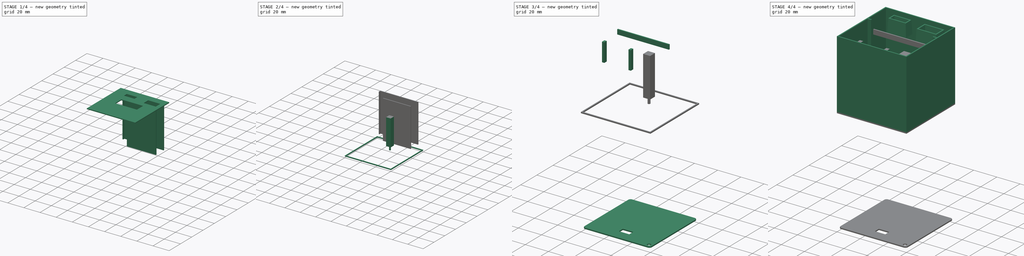
[diagram: build sequence overview — one tinted view per stage of 4, left to right]
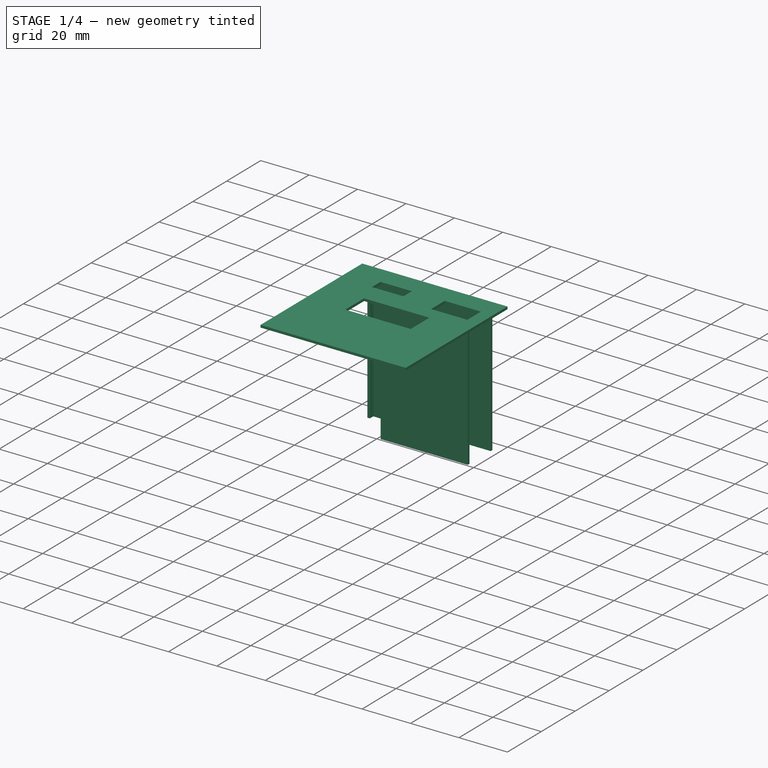
[diagram: stage 1 of 4 — iso view after this stage's code; geometry added in this stage tinted green]
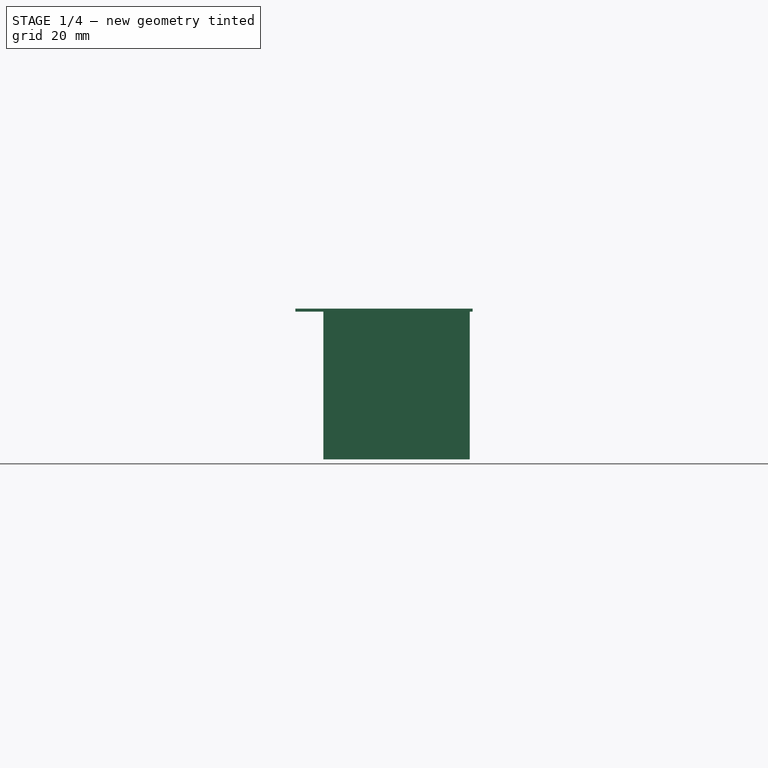
[diagram: stage 1 of 4 — front view after this stage's code; geometry added in this stage tinted green]
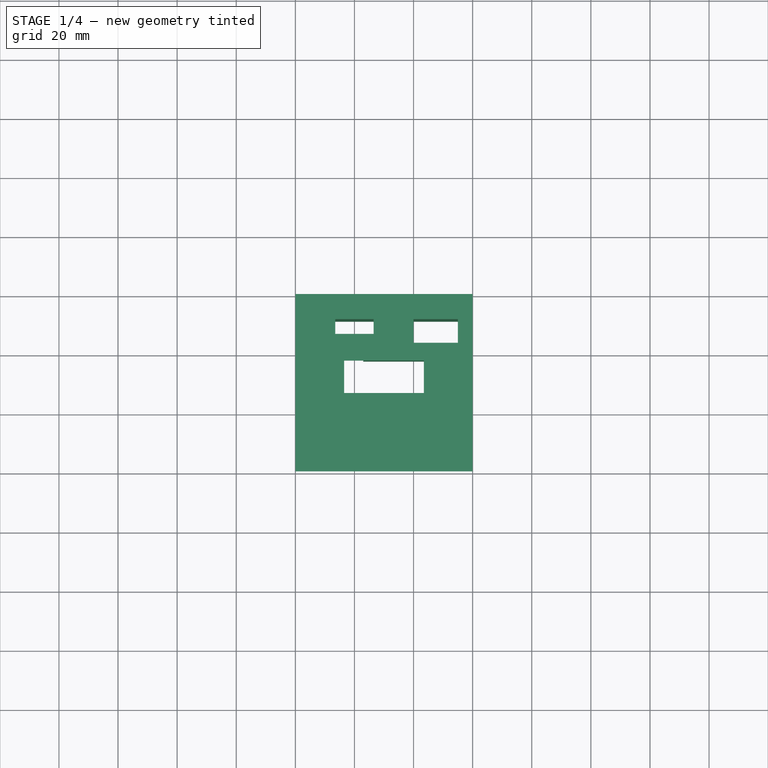
[diagram: stage 1 of 4 — top view after this stage's code; geometry added in this stage tinted green]
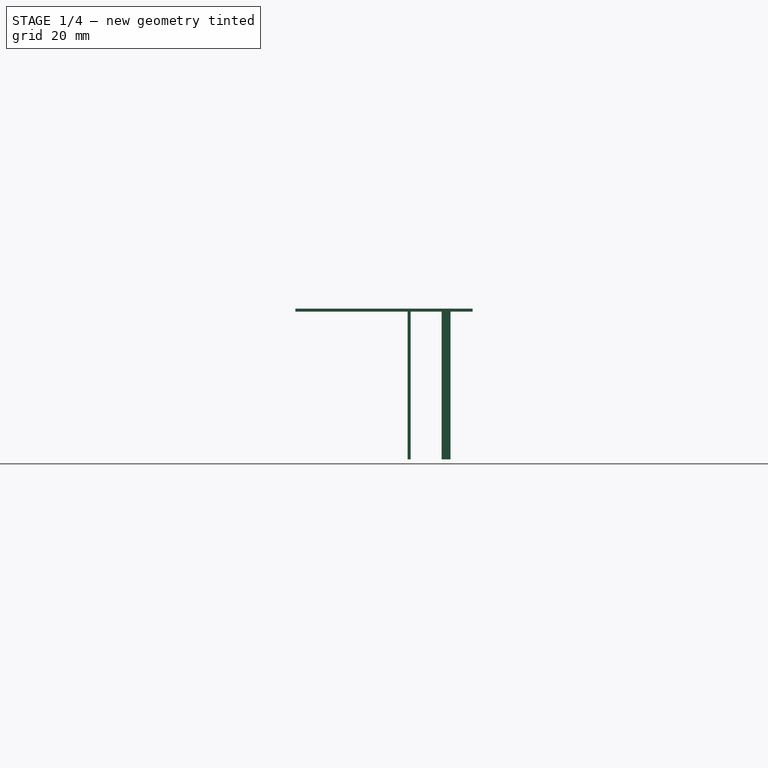
[diagram: stage 1 of 4 — right view after this stage's code; geometry added in this stage tinted green]
FCSTD DOCUMENT  (FreeCAD 0.21R33668 +26 (Git))
Label: pms7003-v3
License: All rights reserved
LicenseURL: http://en.wikipedia.org/wiki/All_rights_reserved
objects: Sketcher::SketchObject×10, Part::Extrusion×10
note: 20 computed .brp shape members not serialized (recipe doc carries the construction recipe); baked Part::Feature solids carry a one-line shape summary decoded from their .brp

FEATURE [Sketcher::SketchObject] Sketch
  FullyConstrained = true
  sketch-geometry (32):
    g0: LineSegment StartX=0 StartY=0 StartZ=0 EndX=60 EndY=0 EndZ=0
    g1: LineSegment StartX=60 StartY=0 StartZ=0 EndX=60 EndY=60 EndZ=0
    g2: LineSegment StartX=60 StartY=60 StartZ=0 EndX=0 EndY=60 EndZ=0
    g3: LineSegment StartX=0 StartY=60 StartZ=0 EndX=0 EndY=0 EndZ=0
    g4: LineSegment StartX=16.5 StartY=37.5 StartZ=0 EndX=43.5 EndY=37.5 EndZ=0
    g5: LineSegment StartX=43.5 StartY=37.5 StartZ=0 EndX=43.5 EndY=26.5 EndZ=0
    g6: LineSegment StartX=43.5 StartY=26.5 StartZ=0 EndX=16.5 EndY=26.5 EndZ=0
    g7: LineSegment StartX=16.5 StartY=26.5 StartZ=0 EndX=16.5 EndY=37.5 EndZ=0
    g8: LineSegment StartX=40 StartY=51.5 StartZ=0 EndX=55 EndY=51.5 EndZ=0
    g9: LineSegment StartX=55 StartY=51.5 StartZ=0 EndX=55 EndY=43.5 EndZ=0
    g10: LineSegment StartX=55 StartY=43.5 StartZ=0 EndX=40 EndY=43.5 EndZ=0
    g11: LineSegment StartX=40 StartY=43.5 StartZ=0 EndX=40 EndY=51.5 EndZ=0
    g12: LineSegment StartX=13.5 StartY=51.5 StartZ=0 EndX=26.5 EndY=51.5 EndZ=0
    g13: LineSegment StartX=26.5 StartY=51.5 StartZ=0 EndX=26.5 EndY=46.5 EndZ=0
    g14: LineSegment StartX=26.5 StartY=46.5 StartZ=0 EndX=13.5 EndY=46.5 EndZ=0
    g15: LineSegment StartX=13.5 StartY=46.5 StartZ=0 EndX=13.5 EndY=51.5 EndZ=0
    g16: LineSegment StartX=10.5 StartY=51.5 StartZ=0 EndX=58.5 EndY=51.5 EndZ=0
    g17: LineSegment StartX=58.5 StartY=51.5 StartZ=0 EndX=58.5 EndY=39.5 EndZ=0
    g18: LineSegment StartX=58.5 StartY=39.5 StartZ=0 EndX=10.5 EndY=39.5 EndZ=0
    g19: LineSegment StartX=10.5 StartY=39.5 StartZ=0 EndX=10.5 EndY=51.5 EndZ=0
    g20: LineSegment StartX=10.5 StartY=39.5 StartZ=0 EndX=1.5 EndY=39.5 EndZ=0
    g21: LineSegment StartX=1.5 StartY=39.5 StartZ=0 EndX=1.5 EndY=37.9 EndZ=0
    g22: LineSegment StartX=1.5 StartY=37.9 StartZ=0 EndX=10.5 EndY=37.9 EndZ=0
    g23: LineSegment StartX=10.5 StartY=37.9 StartZ=0 EndX=10.5 EndY=39.5 EndZ=0
    g24: LineSegment StartX=10.5 StartY=39.5 StartZ=0 EndX=19.5 EndY=39.5 EndZ=0
    g25: LineSegment StartX=19.5 StartY=39.5 StartZ=0 EndX=19.5 EndY=37.9 EndZ=0
    g26: LineSegment StartX=19.5 StartY=37.9 StartZ=0 EndX=10.5 EndY=37.9 EndZ=0
    g27: LineSegment StartX=10.5 StartY=37.9 StartZ=0 EndX=10.5 EndY=39.5 EndZ=0
    g28: LineSegment StartX=10.5 StartY=38 StartZ=0 EndX=50.5 EndY=38 EndZ=0
    g29: LineSegment StartX=50.5 StartY=38 StartZ=0 EndX=50.5 EndY=26 EndZ=0
    g30: LineSegment StartX=50.5 StartY=26 StartZ=0 EndX=10.5 EndY=26 EndZ=0
    g31: LineSegment StartX=10.5 StartY=26 StartZ=0 EndX=10.5 EndY=38 EndZ=0
  constraints (93):
    c: Coincident(g0,g1)
    c: Coincident(g1,g2)
    c: Coincident(g2,g3)
    c: Coincident(g3,g0)
    c: Horizontal(g0)
    c: Horizontal(g2)
    c: Vertical(g1)
    c: Vertical(g3)
    c: Coincident(g0,g-1)
    c: DistanceX(g0,g0) = 60
    c: DistanceY(g3,g3) = 60
    c: Coincident(g4,g5)
    c: Coincident(g5,g6)
    c: Coincident(g6,g7)
    c: Coincident(g7,g4)
    c: Horizontal(g4)
    c: Horizontal(g6)
    c: Vertical(g5)
    c: Vertical(g7)
    c: DistanceY(g7,g7) = 11
    c: DistanceX(g4,g4) = 27
    c: Coincident(g8,g9)
    c: Coincident(g9,g10)
    c: Coincident(g10,g11)
    c: Coincident(g11,g8)
    c: Horizontal(g8)
    c: Horizontal(g10)
    c: Vertical(g9)
    c: Vertical(g11)
    c: DistanceY(g11,g11) = 8
    c: DistanceX(g8,g8) = 15
    c: Coincident(g12,g13)
    c: Coincident(g13,g14)
    c: Coincident(g14,g15)
    c: Coincident(g15,g12)
    c: Horizontal(g12)
    c: Horizontal(g14)
    c: Vertical(g13)
    c: Vertical(g15)
    c: DistanceX(g12,g12) = 13
    c: Horizontal(g12,g8)
    c: Coincident(g16,g17)
    c: Coincident(g17,g18)
    c: Coincident(g18,g19)
    c: Coincident(g19,g16)
    c: Horizontal(g16)
    c: Horizontal(g18)
    c: Vertical(g17)
    c: Vertical(g19)
    c: DistanceX(g16,g16) = 48
    c: DistanceY(g17,g17) = 12
    c: DistanceX(g8,g16) = 3.5
    c: Coincident(g20,g21)
    c: Coincident(g21,g22)
    c: Coincident(g22,g23)
    c: Coincident(g23,g20)
    c: Horizontal(g20)
    c: Horizontal(g22)
    c: Vertical(g21)
    c: Vertical(g23)
    c: Coincident(g20,g18)
    c: DistanceX(g20,g20) = 9
    c: DistanceY(g21,g21) = 1.6
    c: Coincident(g24,g25)
    c: Coincident(g25,g26)
    c: Coincident(g26,g27)
    c: Coincident(g27,g24)
    c: Horizontal(g24)
    c: Horizontal(g26)
    c: Vertical(g25)
    c: Vertical(g27)
    c: Coincident(g24,g18)
    c: DistanceX(g26,g26) = 9
    c: DistanceY(g25,g25) = 1.6
    c: DistanceY(g8,g16) = 0
    c: Coincident(g28,g29)
    c: Coincident(g29,g30)
    c: Coincident(g30,g31)
    c: Coincident(g31,g28)
    c: Horizontal(g28)
    c: Horizontal(g30)
    c: Vertical(g29)
    c: Vertical(g31)
    c: DistanceX(g28,g28) = 40
    c: DistanceY(g31,g31) = 12
    c: DistanceY(g29,g5) = 0.5
    c: DistanceX(g16,g1) = 1.5
    c: DistanceY(g12,g2) = 8.5
    c: DistanceX(g2,g14) = 13.5
    c: DistanceY(g13,g13) = 5
    c: DistanceY(g28,g2) = 22
    c: DistanceX(g30,g6) = 6
    c: DistanceX(g0,g6) = 16.5
FEATURE [Part::Extrusion] Extrude
  Base = -> Sketch
  Dir = (0,0,1)
  DirMode = 2
  FaceMakerClass = Part::FaceMakerBullseye
  LengthFwd = 1
  LengthRev = 0
  Solid = true
  Symmetric = false
FEATURE [Sketcher::SketchObject] Sketch011
  FullyConstrained = true
  sketch-geometry (10):
    g0: LineSegment StartX=59 StartY=52.5 StartZ=0 EndX=59 EndY=51.5 EndZ=0
    g1: LineSegment StartX=59 StartY=51.5 StartZ=0 EndX=10.5 EndY=51.5 EndZ=0
    g2: LineSegment StartX=10.5 StartY=51.5 StartZ=0 EndX=10.5 EndY=49.5 EndZ=0
    g3: LineSegment StartX=10.5 StartY=49.5 StartZ=0 EndX=9.5 EndY=49.5 EndZ=0
    g4: LineSegment StartX=9.5 StartY=49.5 StartZ=0 EndX=9.5 EndY=52.5 EndZ=0
    g5: LineSegment StartX=9.5 StartY=52.5 StartZ=0 EndX=59 EndY=52.5 EndZ=0
    g6: LineSegment StartX=59 StartY=39 StartZ=0 EndX=23 EndY=39 EndZ=0
    g7: LineSegment StartX=23 StartY=39 StartZ=0 EndX=23 EndY=38 EndZ=0
    g8: LineSegment StartX=23 StartY=38 StartZ=0 EndX=59 EndY=38 EndZ=0
    g9: LineSegment StartX=59 StartY=38 StartZ=0 EndX=59 EndY=39 EndZ=0
  constraints (30):
    c: Vertical(g0)
    c: Coincident(g0,g1)
    c: Horizontal(g1)
    c: Coincident(g1,g2)
    c: Vertical(g2)
    c: Coincident(g2,g3)
    c: Coincident(g3,g4)
    c: Vertical(g4)
    c: Coincident(g4,g5)
    c: Coincident(g5,g0)
    c: Horizontal(g5)
    c: DistanceY(g0,g0) = 1
    c: DistanceY(g3,g4) = 3
    c: Horizontal(g3)
    c: DistanceX(g3,g2) = 1
    c: DistanceX(g5,g5) = 49.5
    c: DistanceX(g-1,g0) = 59
    c: DistanceY(g-1,g0) = 51.5
    c: Coincident(g6,g7)
    c: Coincident(g7,g8)
    c: Coincident(g8,g9)
    c: Coincident(g9,g6)
    c: Horizontal(g6)
    c: Horizontal(g8)
    c: Vertical(g7)
    c: Vertical(g9)
    c: DistanceX(g6,g6) = 36
    c: DistanceY(g7,g7) = 1
    c: DistanceX(g-1,g6) = 59
    c: DistanceY(g-1,g6) = 39
FEATURE [Part::Extrusion] Extrude011
  Base = -> Sketch011
  Dir = (0,0,1)
  DirMode = 2
  FaceMakerClass = Part::FaceMakerBullseye
  LengthFwd = 50
  LengthRev = 0
  Reversed = true
  Solid = true
  Symmetric = false
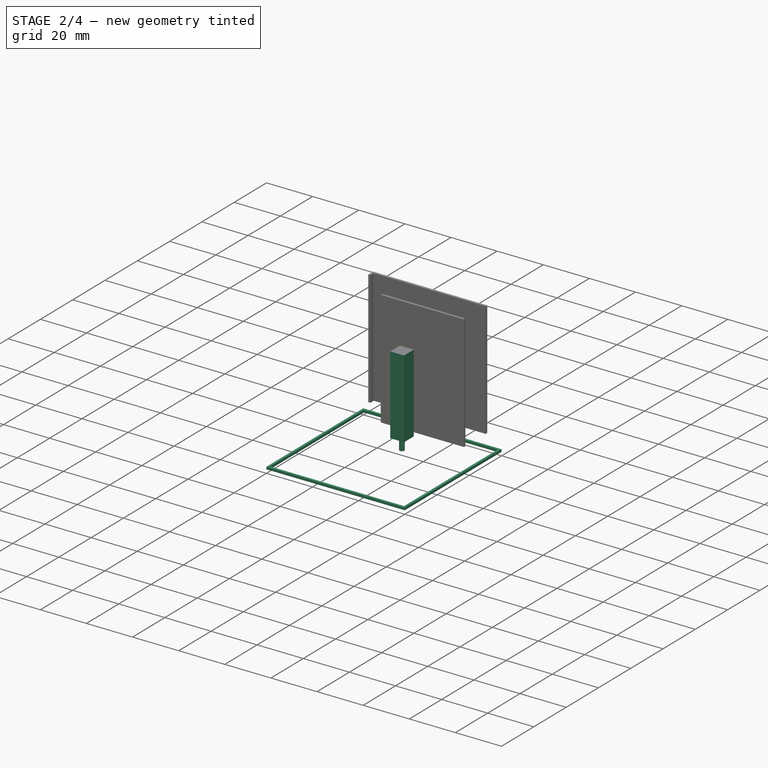
[diagram: stage 2 of 4 — iso view after this stage's code; geometry added in this stage tinted green]
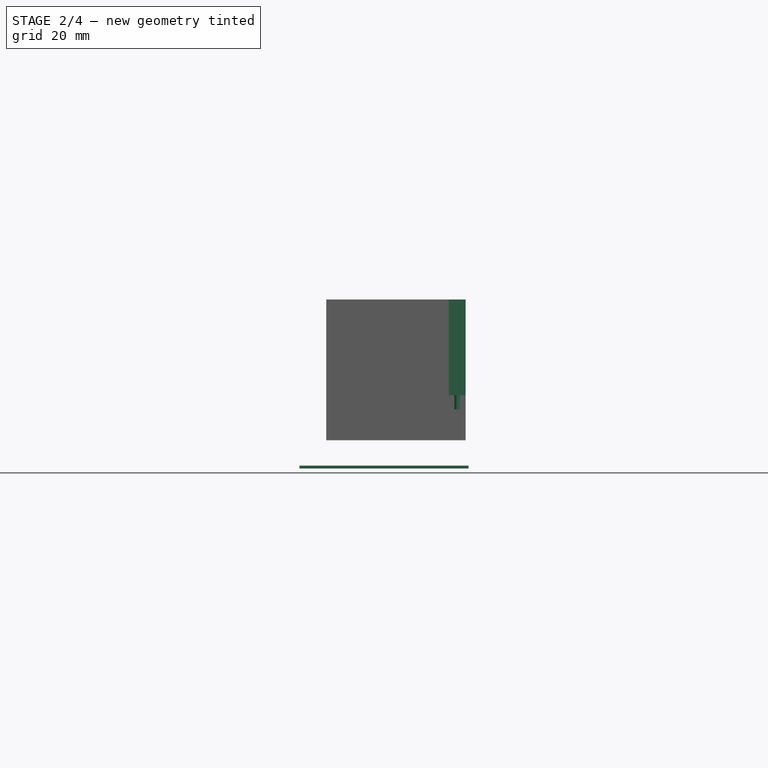
[diagram: stage 2 of 4 — front view after this stage's code; geometry added in this stage tinted green]
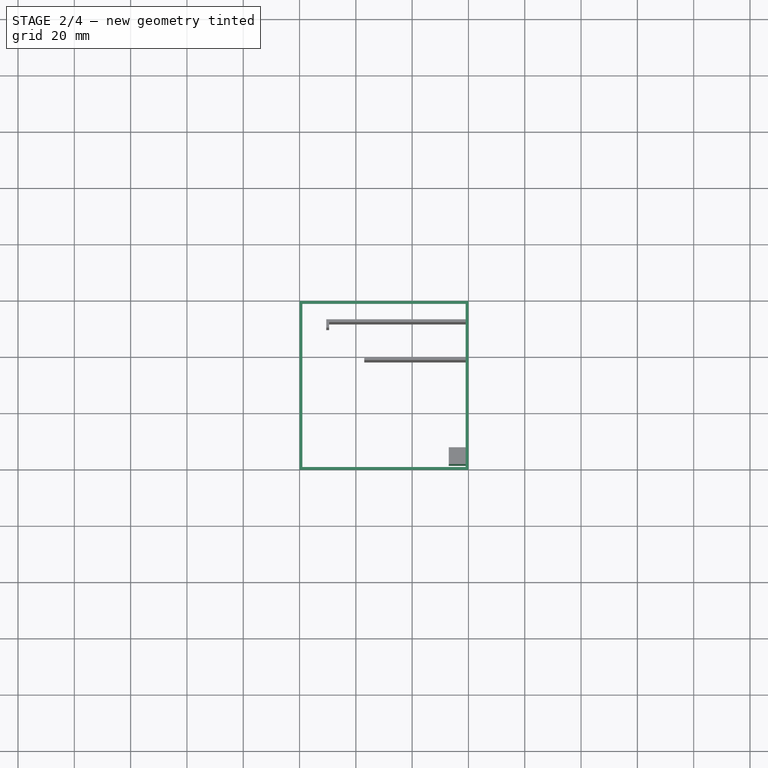
[diagram: stage 2 of 4 — top view after this stage's code; geometry added in this stage tinted green]
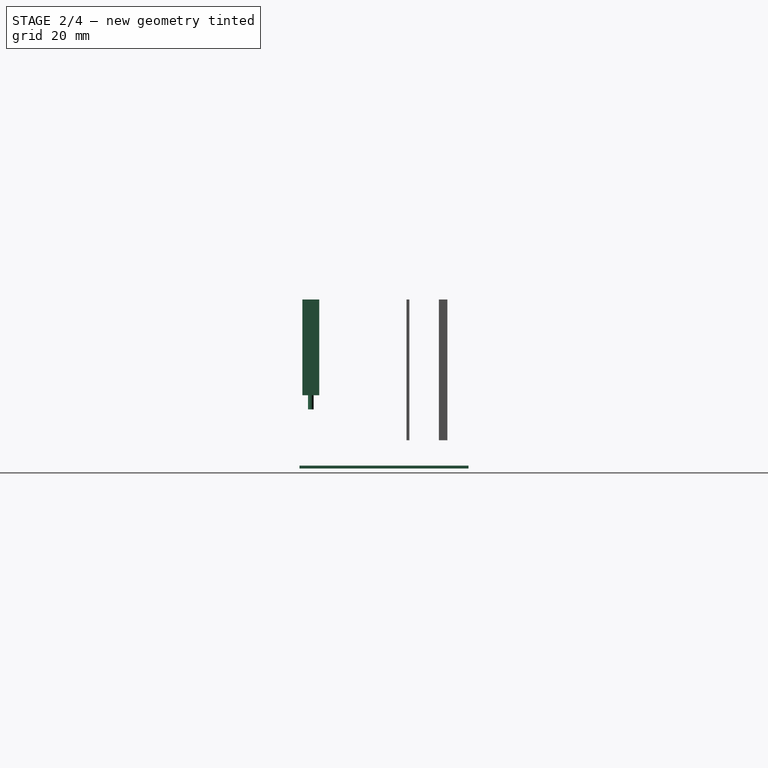
[diagram: stage 2 of 4 — right view after this stage's code; geometry added in this stage tinted green]
FEATURE [Sketcher::SketchObject] Sketch007
  FullyConstrained = true
  sketch-geometry (4):
    g0: LineSegment StartX=53 StartY=7 StartZ=0 EndX=59 EndY=7 EndZ=0
    g1: LineSegment StartX=59 StartY=7 StartZ=0 EndX=59 EndY=1 EndZ=0
    g2: LineSegment StartX=59 StartY=1 StartZ=0 EndX=53 EndY=1 EndZ=0
    g3: LineSegment StartX=53 StartY=1 StartZ=0 EndX=53 EndY=7 EndZ=0
  constraints (12):
    c: Coincident(g0,g1)
    c: Coincident(g1,g2)
    c: Coincident(g2,g3)
    c: Coincident(g3,g0)
    c: Horizontal(g0)
    c: Horizontal(g2)
    c: Vertical(g1)
    c: Vertical(g3)
    c: DistanceY(g1,g1) = 6
    c: DistanceX(g0,g0) = 6
    c: DistanceY(g-1,g2) = 1
    c: DistanceX(g-1,g2) = 53
FEATURE [Part::Extrusion] Extrude007  label="nut base"
  Base = -> Sketch007
  Dir = (0,0,1)
  DirMode = 2
  FaceMakerClass = Part::FaceMakerBullseye
  LengthFwd = 34
  LengthRev = 0
  Reversed = true
  Solid = true
  Symmetric = false
FEATURE [Sketcher::SketchObject] Sketch009
  FullyConstrained = true
  sketch-geometry (1):
    g0: Circle CenterX=56 CenterY=4 CenterZ=0 NormalX=0 NormalY=0 NormalZ=1 AngleXU=0 Radius=1
  constraints (3):
    c: Radius(g0) = 1
    c: DistanceY(g-1,g0) = 4
    c: DistanceX(g-1,g0) = 56
FEATURE [Part::Extrusion] Extrude009  label="nut base locator"
  Base = -> Sketch009
  Dir = (0,0,1)
  DirMode = 2
  FaceMakerClass = Part::FaceMakerBullseye
  LengthFwd = 5
  LengthRev = 0
  Placement = pos=(0,0,-34) rot=(0,0,1;0rad)
  Reversed = true
  Solid = true
  Symmetric = false
FEATURE [Sketcher::SketchObject] Sketch010
  ExternalGeometry = -> [Extrude]
  FullyConstrained = true
  sketch-geometry (8):
    g0: LineSegment StartX=60 StartY=60 StartZ=0 EndX=0 EndY=60 EndZ=0
    g1: LineSegment StartX=0 StartY=60 StartZ=0 EndX=0 EndY=0 EndZ=0
    g2: LineSegment StartX=0 StartY=0 StartZ=0 EndX=60 EndY=0 EndZ=0
    g3: LineSegment StartX=60 StartY=0 StartZ=0 EndX=60 EndY=60 EndZ=0
    g4: LineSegment StartX=1 StartY=59 StartZ=0 EndX=59 EndY=59 EndZ=0
    g5: LineSegment StartX=59 StartY=59 StartZ=0 EndX=59 EndY=1.01 EndZ=0
    g6: LineSegment StartX=59 StartY=1.01 StartZ=0 EndX=1 EndY=1.01 EndZ=0
    g7: LineSegment StartX=1 StartY=1.01 StartZ=0 EndX=1 EndY=59 EndZ=0
  constraints (22):
    c: Coincident(g0,g1)
    c: Coincident(g1,g2)
    c: Coincident(g2,g3)
    c: Coincident(g3,g0)
    c: Horizontal(g0)
    c: Horizontal(g2)
    c: Vertical(g1)
    c: Vertical(g3)
    c: Coincident(g0,g-5)
    c: Coincident(g1,g-6)
    c: Coincident(g4,g5)
    c: Coincident(g5,g6)
    c: Coincident(g6,g7)
    c: Coincident(g7,g4)
    c: Horizontal(g4)
    c: Horizontal(g6)
    c: Vertical(g5)
    c: Vertical(g7)
    c: DistanceX(g0,g4) = 1
    c: DistanceX(g4,g0) = 1
    c: DistanceY(g4,g0) = 1
    c: DistanceY(g1,g6) = 1.01
FEATURE [Part::Extrusion] Extrude010
  Base = -> Sketch010
  Dir = (0,0,1)
  DirMode = 2
  FaceMakerClass = Part::FaceMakerBullseye
  LengthFwd = 1
  LengthRev = 0
  Placement = pos=(0,0,-60) rot=(0,0,1;0rad)
  Solid = true
  Symmetric = false
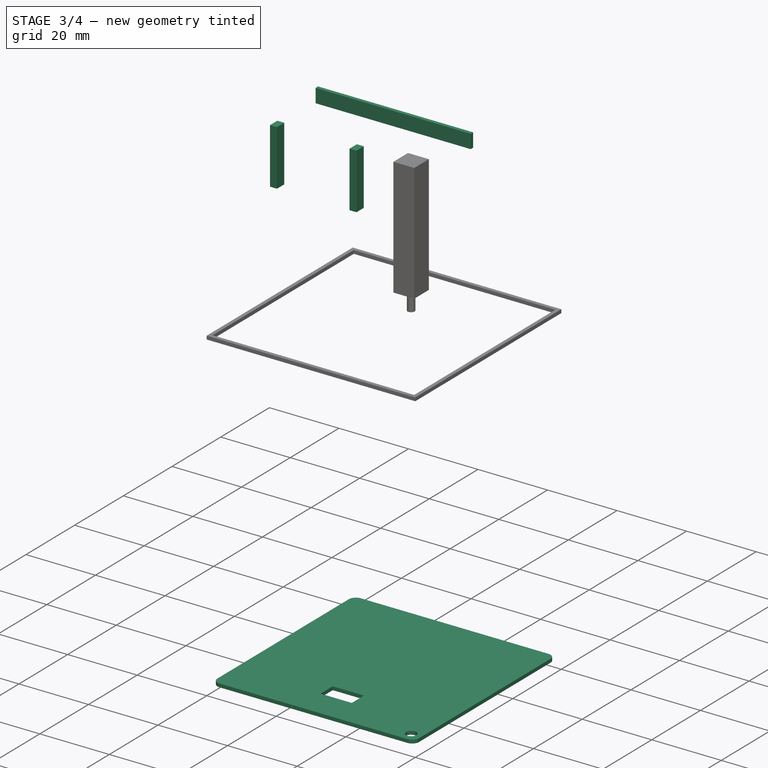
[diagram: stage 3 of 4 — iso view after this stage's code; geometry added in this stage tinted green]
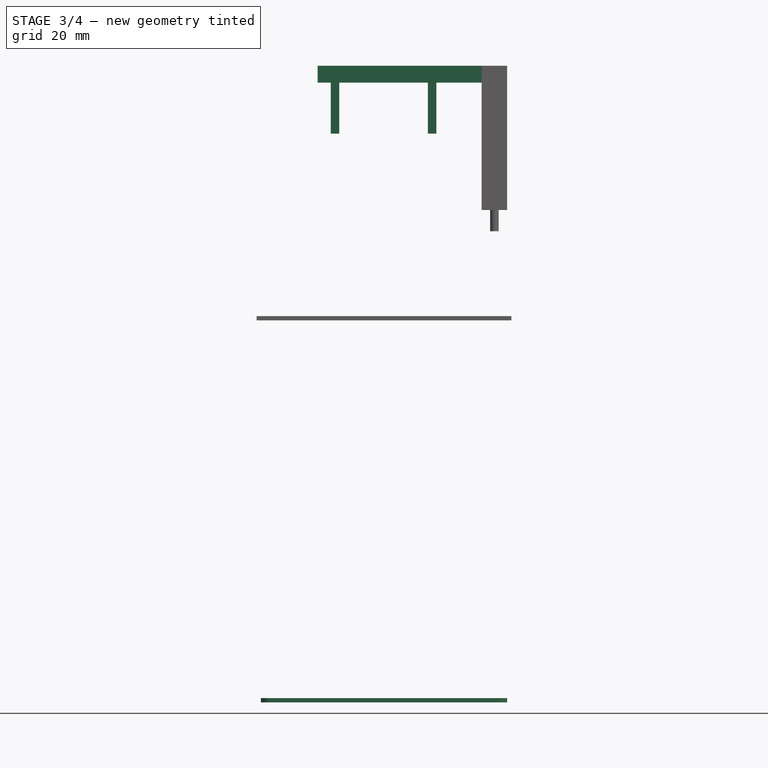
[diagram: stage 3 of 4 — front view after this stage's code; geometry added in this stage tinted green]
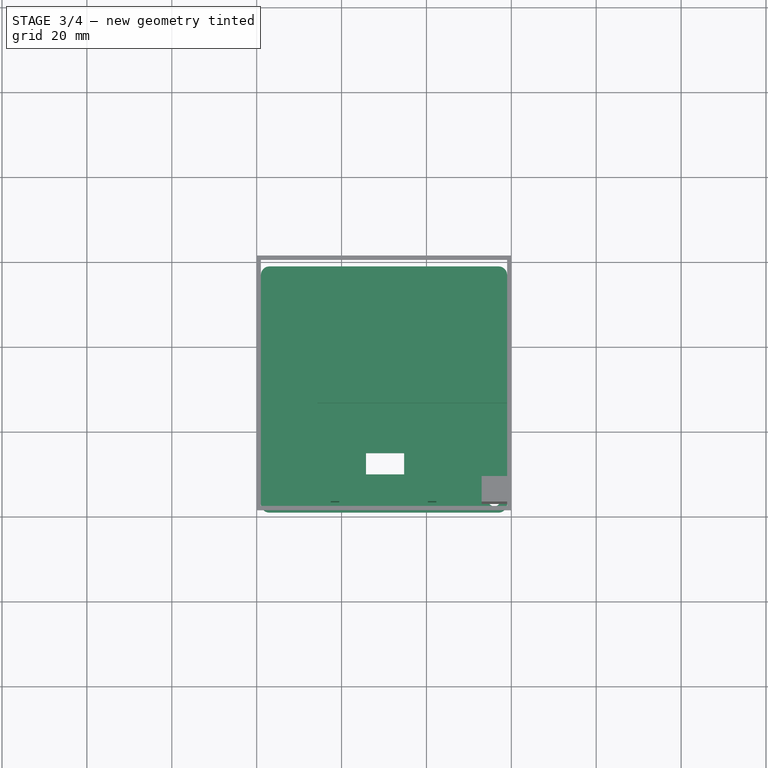
[diagram: stage 3 of 4 — top view after this stage's code; geometry added in this stage tinted green]
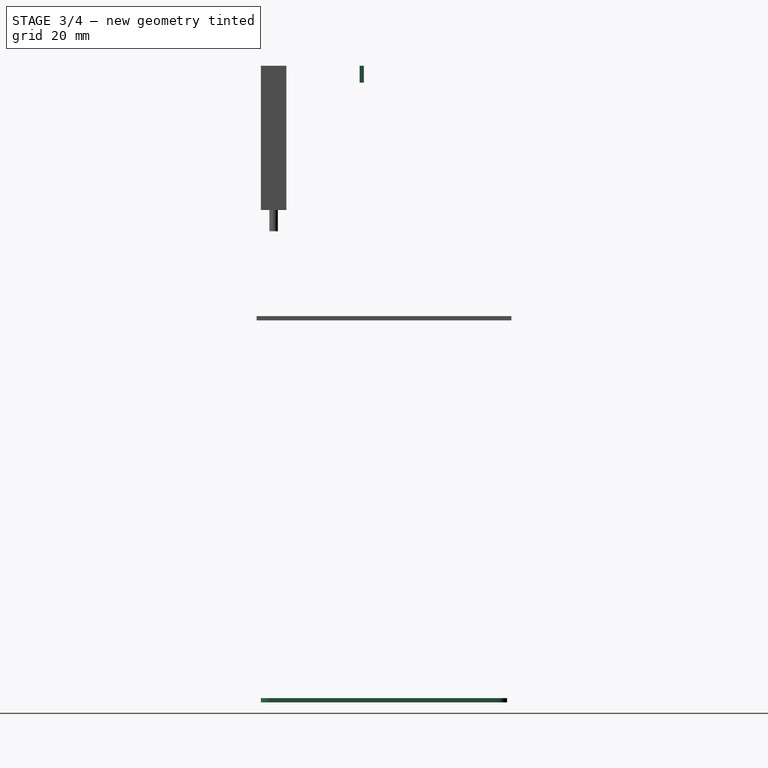
[diagram: stage 3 of 4 — right view after this stage's code; geometry added in this stage tinted green]
FEATURE [Sketcher::SketchObject] Sketch004
  FullyConstrained = false
  sketch-geometry (8):
    g0: LineSegment StartX=17.4672 StartY=4.07613 StartZ=0 EndX=19.4672 EndY=4.07613 EndZ=0
    g1: LineSegment StartX=19.4672 StartY=4.07613 StartZ=0 EndX=19.4672 EndY=1.07613 EndZ=0
    g2: LineSegment StartX=19.4672 StartY=1.07613 StartZ=0 EndX=17.4672 EndY=1.07613 EndZ=0
    g3: LineSegment StartX=17.4672 StartY=1.07613 StartZ=0 EndX=17.4672 EndY=4.07613 EndZ=0
    g4: LineSegment StartX=40.3363 StartY=4.07613 StartZ=0 EndX=42.3363 EndY=4.07613 EndZ=0
    g5: LineSegment StartX=42.3363 StartY=4.07613 StartZ=0 EndX=42.3363 EndY=1.07613 EndZ=0
    g6: LineSegment StartX=42.3363 StartY=1.07613 StartZ=0 EndX=40.3363 EndY=1.07613 EndZ=0
    g7: LineSegment StartX=40.3363 StartY=1.07613 StartZ=0 EndX=40.3363 EndY=4.07613 EndZ=0
  constraints (21):
    c: Coincident(g0,g1)
    c: Coincident(g1,g2)
    c: Coincident(g2,g3)
    c: Coincident(g3,g0)
    c: Horizontal(g0)
    c: Horizontal(g2)
    c: Vertical(g1)
    c: Vertical(g3)
    c: DistanceY(g3,g3) = 3
    c: DistanceX(g0,g0) = 2
    c: Coincident(g4,g5)
    c: Coincident(g5,g6)
    c: Coincident(g6,g7)
    c: Coincident(g7,g4)
    c: Horizontal(g4)
    c: Horizontal(g6)
    c: Vertical(g5)
    c: Vertical(g7)
    c: DistanceY(g7,g7) = 3
    c: DistanceX(g4,g4) = 2
    c: Horizontal(g1,g6)
FEATURE [Part::Extrusion] Extrude004  label="mcu stopper"
  Base = -> Sketch004
  Dir = (0,0,1)
  DirMode = 2
  FaceMakerClass = Part::FaceMakerBullseye
  LengthFwd = 16
  LengthRev = 0
  Reversed = true
  Solid = true
  Symmetric = false
FEATURE [Sketcher::SketchObject] Sketch005
  ExternalGeometry = -> [Extrude]
  FullyConstrained = true
  sketch-geometry (17):
    g0: LineSegment StartX=25.75 StartY=15 StartZ=0 EndX=34.75 EndY=15 EndZ=0
    g1: LineSegment StartX=34.75 StartY=15 StartZ=0 EndX=34.75 EndY=10 EndZ=0
    g2: LineSegment StartX=34.75 StartY=10 StartZ=0 EndX=25.75 EndY=10 EndZ=0
    g3: LineSegment StartX=25.75 StartY=10 StartZ=0 EndX=25.75 EndY=15 EndZ=0
    g4: Circle CenterX=56 CenterY=4 CenterZ=0 NormalX=0 NormalY=0 NormalZ=1 AngleXU=0 Radius=1.5
    g5: LineSegment StartX=3 StartY=59 StartZ=0 EndX=57 EndY=59 EndZ=0
    g6: LineSegment StartX=59 StartY=57 StartZ=0 EndX=59 EndY=3 EndZ=0
    g7: LineSegment StartX=57 StartY=1 StartZ=0 EndX=3 EndY=1 EndZ=0
    g8: LineSegment StartX=1 StartY=3 StartZ=0 EndX=1 EndY=57 EndZ=0
    g9: ArcOfCircle CenterX=57 CenterY=57 CenterZ=0 NormalX=0 NormalY=0 NormalZ=1 AngleXU=0 Radius=2 StartAngle=0 EndAngle=1.5708
    g10: GeomPoint X=59 Y=59 Z=0
    g11: ArcOfCircle CenterX=3 CenterY=57 CenterZ=0 NormalX=0 NormalY=0 NormalZ=1 AngleXU=0 Radius=2 StartAngle=1.5708 EndAngle=3.14159
    g12: GeomPoint X=1 Y=59 Z=0
    g13: ArcOfCircle CenterX=3 CenterY=3 CenterZ=0 NormalX=0 NormalY=0 NormalZ=1 AngleXU=0 Radius=2 StartAngle=3.14159 EndAngle=4.71239
    g14: GeomPoint X=1 Y=1 Z=0
    g15: ArcOfCircle CenterX=57 CenterY=3 CenterZ=0 NormalX=0 NormalY=0 NormalZ=1 AngleXU=0 Radius=2 StartAngle=4.71239 EndAngle=6.28319
    g16: GeomPoint X=59 Y=1 Z=0
  constraints (43):
    c: Coincident(g0,g1)
    c: Coincident(g1,g2)
    c: Coincident(g2,g3)
    c: Coincident(g3,g0)
    c: Horizontal(g0)
    c: Horizontal(g2)
    c: Vertical(g1)
    c: Vertical(g3)
    c: DistanceY(g1,g1) = 5
    c: DistanceX(g2,g2) = 9
    c: Radius(g4) = 1.5
    c: Horizontal(g5)
    c: Horizontal(g7)
    c: Vertical(g6)
    c: Vertical(g8)
    c: DistanceX(g-4,g12) = 1
    c: DistanceX(g10,g-5) = 1
    c: DistanceY(g-6,g14) = 1
    c: DistanceY(g12,g-4) = 1
    c: DistanceY(g-6,g2) = 10
    c: DistanceX(g-6,g2) = 25.75
    c: PointOnObject(g10,g5)
    c: PointOnObject(g10,g6)
    c: Tangent(g5,g9) = 1.5708
    c: Tangent(g6,g9) = 1.5708
    c: PointOnObject(g12,g5)
    c: PointOnObject(g12,g8)
    c: Tangent(g5,g11) = 1.5708
    c: Tangent(g8,g11) = 1.5708
    c: PointOnObject(g14,g7)
    c: PointOnObject(g14,g8)
    c: Tangent(g7,g13) = 1.5708
    c: Tangent(g8,g13) = 1.5708
    c: PointOnObject(g16,g6)
    c: PointOnObject(g16,g7)
    c: Tangent(g6,g15) = 1.5708
    c: Tangent(g7,g15) = 1.5708
    c: Radius(g9) = 2
    c: Radius(g11) = 2
    c: Radius(g15) = 2
    c: Radius(g13) = 2
    c: DistanceY(g-6,g4) = 4
    c: DistanceX(g-6,g4) = 56
FEATURE [Part::Extrusion] Extrude005  label="Cover"
  Base = -> Sketch005
  Dir = (0,0,1)
  DirMode = 2
  FaceMakerClass = Part::FaceMakerBullseye
  LengthFwd = 1
  LengthRev = 0
  Placement = pos=(0,0,-150) rot=(0,0,1;0rad)
  Solid = true
  Symmetric = false
FEATURE [Sketcher::SketchObject] Sketch003
  ExternalGeometry = -> [Extrude,Extrude011]
  FullyConstrained = false
  sketch-geometry (4):
    g0: LineSegment StartX=14.3468 StartY=25.25 StartZ=0 EndX=58.9677 EndY=25.25 EndZ=0
    g1: LineSegment StartX=58.9677 StartY=25.25 StartZ=0 EndX=58.9677 EndY=24.25 EndZ=0
    g2: LineSegment StartX=58.9677 StartY=24.25 StartZ=0 EndX=14.3468 EndY=24.25 EndZ=0
    g3: LineSegment StartX=14.3468 StartY=24.25 StartZ=0 EndX=14.3468 EndY=25.25 EndZ=0
  constraints (10):
    c: Coincident(g0,g1)
    c: Coincident(g1,g2)
    c: Coincident(g2,g3)
    c: Coincident(g3,g0)
    c: Horizontal(g0)
    c: Horizontal(g2)
    c: Vertical(g1)
    c: Vertical(g3)
    c: DistanceY(g1,g1) = 1
    c: DistanceY(g0,g-4) = 12.75
FEATURE [Part::Extrusion] Extrude003
  Base = -> Sketch003
  Dir = (0,0,1)
  DirMode = 2
  FaceMakerClass = Part::FaceMakerBullseye
  LengthFwd = 4
  LengthRev = 0
  Reversed = true
  Solid = true
  Symmetric = false
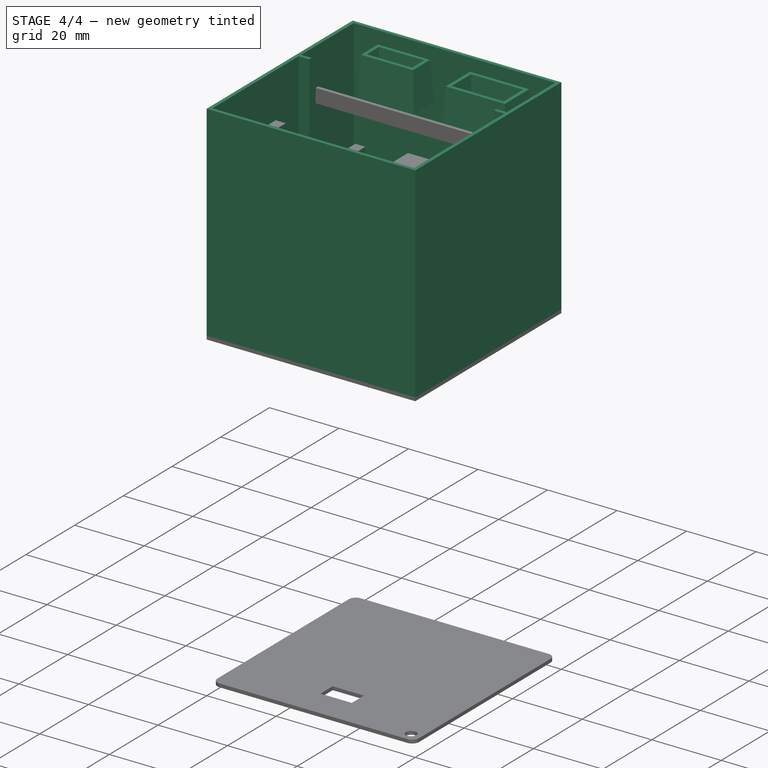
[diagram: stage 4 of 4 — iso view after this stage's code; geometry added in this stage tinted green]
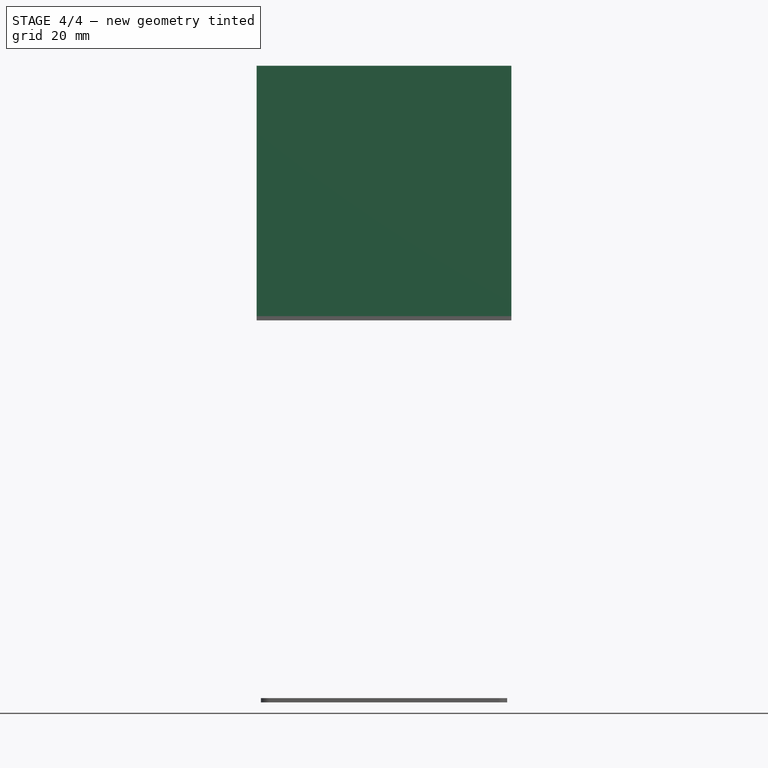
[diagram: stage 4 of 4 — front view after this stage's code; geometry added in this stage tinted green]
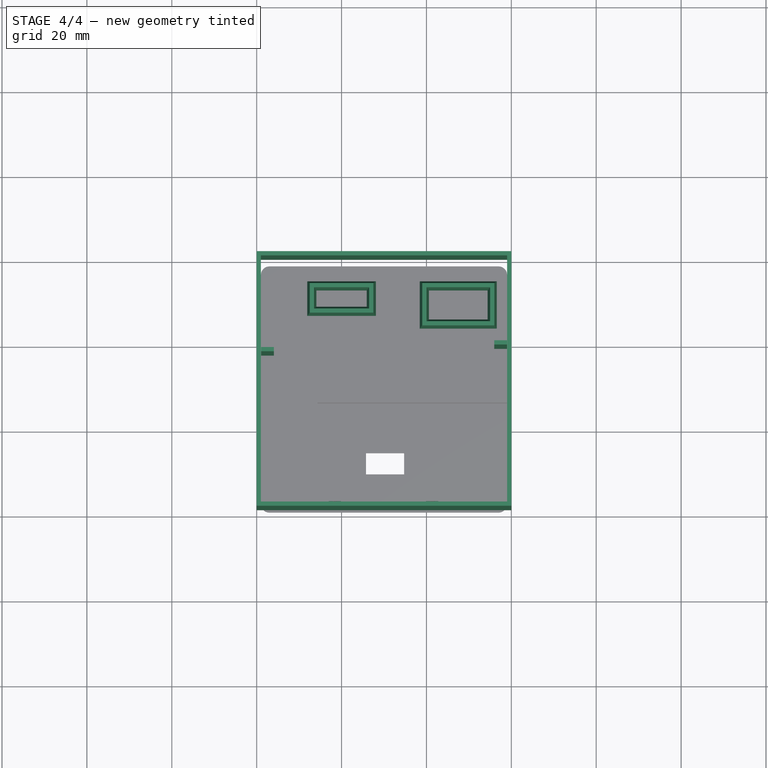
[diagram: stage 4 of 4 — top view after this stage's code; geometry added in this stage tinted green]
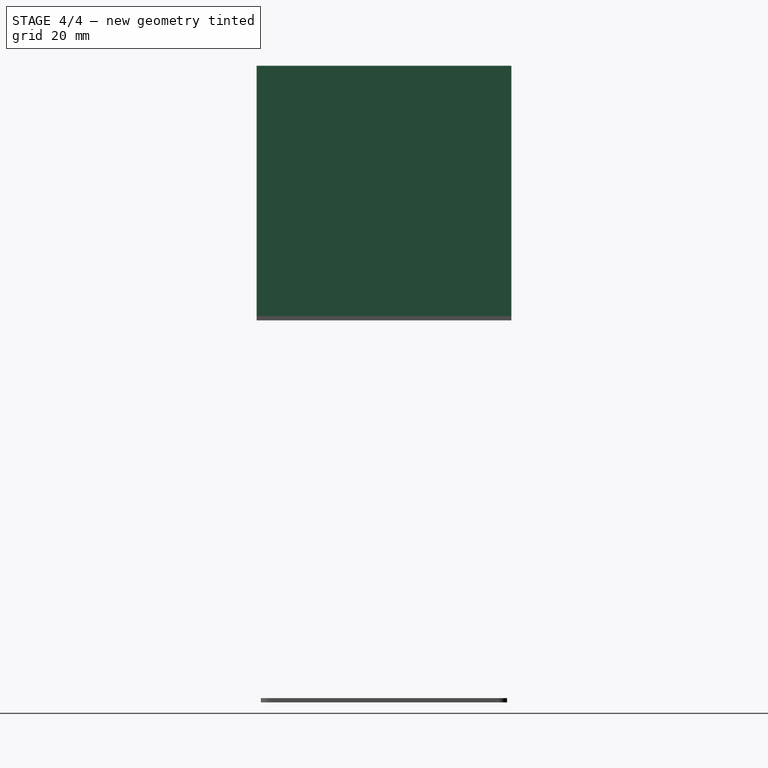
[diagram: stage 4 of 4 — right view after this stage's code; geometry added in this stage tinted green]
FEATURE [Sketcher::SketchObject] Sketch001
  FullyConstrained = false
  sketch-geometry (32):
    g0: LineSegment StartX=0 StartY=0 StartZ=0 EndX=60 EndY=0 EndZ=0
    g1: LineSegment StartX=60 StartY=0 StartZ=0 EndX=60 EndY=60 EndZ=0
    g2: LineSegment StartX=60 StartY=60 StartZ=0 EndX=0 EndY=60 EndZ=0
    g3: LineSegment StartX=0 StartY=60 StartZ=0 EndX=0 EndY=0 EndZ=0
    g4: LineSegment StartX=1 StartY=59 StartZ=0 EndX=59 EndY=59 EndZ=0
    g5: LineSegment StartX=59 StartY=59 StartZ=0 EndX=59 EndY=1 EndZ=0
    g6: LineSegment StartX=59 StartY=1 StartZ=0 EndX=1 EndY=1 EndZ=0
    g7: LineSegment StartX=1 StartY=1 StartZ=0 EndX=1 EndY=59 EndZ=0
    g8: LineSegment StartX=18.9 StartY=4.07029 StartZ=0 EndX=19.9 EndY=4.07029 EndZ=0
    g9: LineSegment StartX=19.9 StartY=4.07029 StartZ=0 EndX=19.9 EndY=1.07029 EndZ=0
    g10: LineSegment StartX=19.9 StartY=1.07029 StartZ=0 EndX=18.9 EndY=1.07029 EndZ=0
    g11: LineSegment StartX=18.9 StartY=1.07029 StartZ=0 EndX=18.9 EndY=4.07029 EndZ=0
    g12: LineSegment StartX=17 StartY=4.07029 StartZ=0 EndX=18 EndY=4.07029 EndZ=0
    g13: LineSegment StartX=18 StartY=4.07029 StartZ=0 EndX=18 EndY=1.07029 EndZ=0
    g14: LineSegment StartX=18 StartY=1.07029 StartZ=0 EndX=17 EndY=1.07029 EndZ=0
    g15: LineSegment StartX=17 StartY=1.07029 StartZ=0 EndX=17 EndY=4.07029 EndZ=0
    g16: LineSegment StartX=41.8 StartY=4.07029 StartZ=0 EndX=42.8 EndY=4.07029 EndZ=0
    g17: LineSegment StartX=42.8 StartY=4.07029 StartZ=0 EndX=42.8 EndY=1.07029 EndZ=0
    g18: LineSegment StartX=42.8 StartY=1.07029 StartZ=0 EndX=41.8 EndY=1.07029 EndZ=0
    g19: LineSegment StartX=41.8 StartY=1.07029 StartZ=0 EndX=41.8 EndY=4.07029 EndZ=0
    g20: LineSegment StartX=39.9 StartY=4.07029 StartZ=0 EndX=40.9 EndY=4.07029 EndZ=0
    g21: LineSegment StartX=40.9 StartY=4.07029 StartZ=0 EndX=40.9 EndY=1.07029 EndZ=0
    g22: LineSegment StartX=40.9 StartY=1.07029 StartZ=0 EndX=39.9 EndY=1.07029 EndZ=0
    g23: LineSegment StartX=39.9 StartY=1.07029 StartZ=0 EndX=39.9 EndY=4.07029 EndZ=0
    g24: LineSegment StartX=1.0386 StartY=36.4 StartZ=0 EndX=1.0386 EndY=37.4 EndZ=0
    g25: LineSegment StartX=1.0386 StartY=37.4 StartZ=0 EndX=4.0386 EndY=37.4 EndZ=0
    g26: LineSegment StartX=4.0386 StartY=37.4 StartZ=0 EndX=4.0386 EndY=36.4 EndZ=0
    g27: LineSegment StartX=4.0386 StartY=36.4 StartZ=0 EndX=1.0386 EndY=36.4 EndZ=0
    g28: LineSegment StartX=55.9777 StartY=39.0049 StartZ=0 EndX=58.9777 EndY=39.0049 EndZ=0
    g29: LineSegment StartX=58.9777 StartY=39.0049 StartZ=0 EndX=58.9777 EndY=38.0049 EndZ=0
    g30: LineSegment StartX=58.9777 StartY=38.0049 StartZ=0 EndX=55.9777 EndY=38.0049 EndZ=0
    g31: LineSegment StartX=55.9777 StartY=38.0049 StartZ=0 EndX=55.9777 EndY=39.0049 EndZ=0
  constraints (91):
    c: Coincident(g0,g1)
    c: Coincident(g1,g2)
    c: Coincident(g2,g3)
    c: Coincident(g3,g0)
    c: Horizontal(g0)
    c: Horizontal(g2)
    c: Vertical(g1)
    c: Vertical(g3)
    c: Coincident(g0,g-1)
    c: DistanceX(g0,g0) = 60
    c: DistanceY(g3,g3) = 60
    c: Coincident(g4,g5)
    c: Coincident(g5,g6)
    c: Coincident(g6,g7)
    c: Coincident(g7,g4)
    c: Horizontal(g4)
    c: Horizontal(g6)
    c: Vertical(g5)
    c: Vertical(g7)
    c: DistanceX(g2,g4) = 1
    c: DistanceX(g4,g1) = 1
    c: DistanceY(g4,g2) = 1
    c: DistanceY(g0,g6) = 1
    c: Coincident(g8,g9)
    c: Coincident(g9,g10)
    c: Coincident(g10,g11)
    c: Coincident(g11,g8)
    c: Horizontal(g8)
    c: Horizontal(g10)
    c: Vertical(g9)
    c: Vertical(g11)
    c: DistanceX(g8,g8) = 1
    c: DistanceY(g9,g9) = 3
    c: Coincident(g12,g13)
    c: Coincident(g13,g14)
    c: Coincident(g14,g15)
    c: Coincident(g15,g12)
    c: Horizontal(g12)
    c: Horizontal(g14)
    c: Vertical(g13)
    c: Vertical(g15)
    c: DistanceX(g12,g12) = 1
    c: DistanceY(g15,g15) = 3
    c: Horizontal(g12,g8)
    c: DistanceX(g12,g8) = 0.9
    c: Coincident(g16,g17)
    c: Coincident(g17,g18)
    c: Coincident(g18,g19)
    c: Coincident(g19,g16)
    c: Horizontal(g16)
    c: Horizontal(g18)
    c: Vertical(g17)
    c: Vertical(g19)
    c: DistanceX(g16,g16) = 1
    c: DistanceY(g17,g17) = 3
    c: Coincident(g20,g21)
    c: Coincident(g21,g22)
    c: Coincident(g22,g23)
    c: Coincident(g23,g20)
    c: Horizontal(g20)
    c: Horizontal(g22)
    c: Vertical(g21)
    c: Vertical(g23)
    c: DistanceX(g20,g20) = 1
    c: DistanceY(g23,g23) = 3
    c: Horizontal(g20,g16)
    c: DistanceX(g20,g16) = 0.9
    c: Horizontal(g9,g22)
    c: DistanceX(g6,g12) = 16
    c: DistanceX(g8,g20) = 22
    c: DistanceY(g0,g24) = 36.4
    c: Coincident(g24,g25)
    c: Horizontal(g25)
    c: Coincident(g25,g26)
    c: Vertical(g26)
    c: Coincident(g26,g27)
    c: Coincident(g27,g24)
    c: Horizontal(g27)
    c: DistanceY(g26,g26) = 1
    c: DistanceX(g25,g25) = 3
    c: Vertical(g24)
    c: Coincident(g28,g29)
    c: Coincident(g29,g30)
    c: Coincident(g30,g31)
    c: Coincident(g31,g28)
    c: Horizontal(g28)
    c: Horizontal(g30)
    c: Vertical(g29)
    c: Vertical(g31)
    c: DistanceY(g31,g31) = 1
    c: DistanceX(g28,g28) = 3
FEATURE [Part::Extrusion] Extrude001
  Base = -> Sketch001
  Dir = (0,0,1)
  DirMode = 2
  FaceMakerClass = Part::FaceMakerBullseye
  LengthFwd = 59
  LengthRev = 0
  Reversed = true
  Solid = true
  Symmetric = false
FEATURE [Sketcher::SketchObject] Sketch002
  ExternalGeometry = -> [Extrude]
  FullyConstrained = true
  sketch-geometry (16):
    g0: LineSegment StartX=40 StartY=51.5 StartZ=0 EndX=55 EndY=51.5 EndZ=0
    g1: LineSegment StartX=55 StartY=51.5 StartZ=0 EndX=55 EndY=43.5 EndZ=0
    g2: LineSegment StartX=55 StartY=43.5 StartZ=0 EndX=40 EndY=43.5 EndZ=0
    g3: LineSegment StartX=40 StartY=43.5 StartZ=0 EndX=40 EndY=51.5 EndZ=0
    g4: LineSegment StartX=13.5 StartY=51.5 StartZ=0 EndX=26.5 EndY=51.5 EndZ=0
    g5: LineSegment StartX=26.5 StartY=51.5 StartZ=0 EndX=26.5 EndY=46.5 EndZ=0
    g6: LineSegment StartX=26.5 StartY=46.5 StartZ=0 EndX=13.5 EndY=46.5 EndZ=0
    g7: LineSegment StartX=13.5 StartY=46.5 StartZ=0 EndX=13.5 EndY=51.5 EndZ=0
    g8: LineSegment StartX=39 StartY=52.5 StartZ=0 EndX=56 EndY=52.5 EndZ=0
    g9: LineSegment StartX=56 StartY=52.5 StartZ=0 EndX=56 EndY=42.5 EndZ=0
    g10: LineSegment StartX=56 StartY=42.5 StartZ=0 EndX=39 EndY=42.5 EndZ=0
    g11: LineSegment StartX=39 StartY=42.5 StartZ=0 EndX=39 EndY=52.5 EndZ=0
    g12: LineSegment StartX=12.5 StartY=52.5 StartZ=0 EndX=27.5 EndY=52.5 EndZ=0
    g13: LineSegment StartX=27.5 StartY=52.5 StartZ=0 EndX=27.5 EndY=45.5 EndZ=0
    g14: LineSegment StartX=27.5 StartY=45.5 StartZ=0 EndX=12.5 EndY=45.5 EndZ=0
    g15: LineSegment StartX=12.5 StartY=45.5 StartZ=0 EndX=12.5 EndY=52.5 EndZ=0
  constraints (44):
    c: Coincident(g0,g1)
    c: Coincident(g1,g2)
    c: Coincident(g2,g3)
    c: Coincident(g3,g0)
    c: Horizontal(g0)
    c: Horizontal(g2)
    c: Vertical(g1)
    c: Vertical(g3)
    c: Coincident(g0,g-5)
    c: Coincident(g1,g-6)
    c: Coincident(g4,g5)
    c: Coincident(g5,g6)
    c: Coincident(g6,g7)
    c: Coincident(g7,g4)
    c: Horizontal(g4)
    c: Horizontal(g6)
    c: Vertical(g5)
    c: Vertical(g7)
    c: Coincident(g4,g-8)
    c: Coincident(g5,g-10)
    c: Coincident(g8,g9)
    c: Coincident(g9,g10)
    c: Coincident(g10,g11)
    c: Coincident(g11,g8)
    c: Horizontal(g8)
    c: Horizontal(g10)
    c: Vertical(g9)
    c: Vertical(g11)
    c: Coincident(g12,g13)
    c: Coincident(g13,g14)
    c: Coincident(g14,g15)
    c: Coincident(g15,g12)
    c: Horizontal(g12)
    c: Horizontal(g14)
    c: Vertical(g13)
    c: Vertical(g15)
    c: DistanceX(g8,g0) = 1
    c: DistanceX(g4,g12) = 1
    c: DistanceX(g12,g4) = 1
    c: DistanceX(g0,g8) = 1
    c: DistanceY(g0,g8) = 1
    c: DistanceY(g9,g1) = 1
    c: DistanceY(g4,g12) = 1
    c: DistanceY(g13,g5) = 1
FEATURE [Part::Extrusion] Extrude002
  Base = -> Sketch002
  Dir = (0,0,1)
  DirMode = 2
  FaceMakerClass = Part::FaceMakerBullseye
  LengthFwd = 11
  LengthRev = 0
  Reversed = true
  Solid = true
  Symmetric = false
  TaperAngle = 3
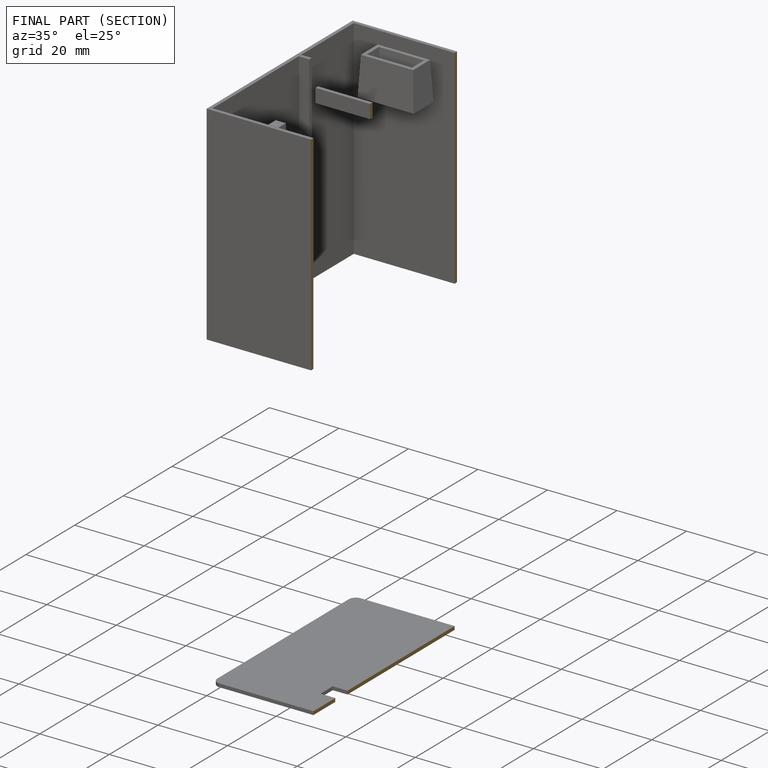
[diagram: finished part — half-section view (interior)]
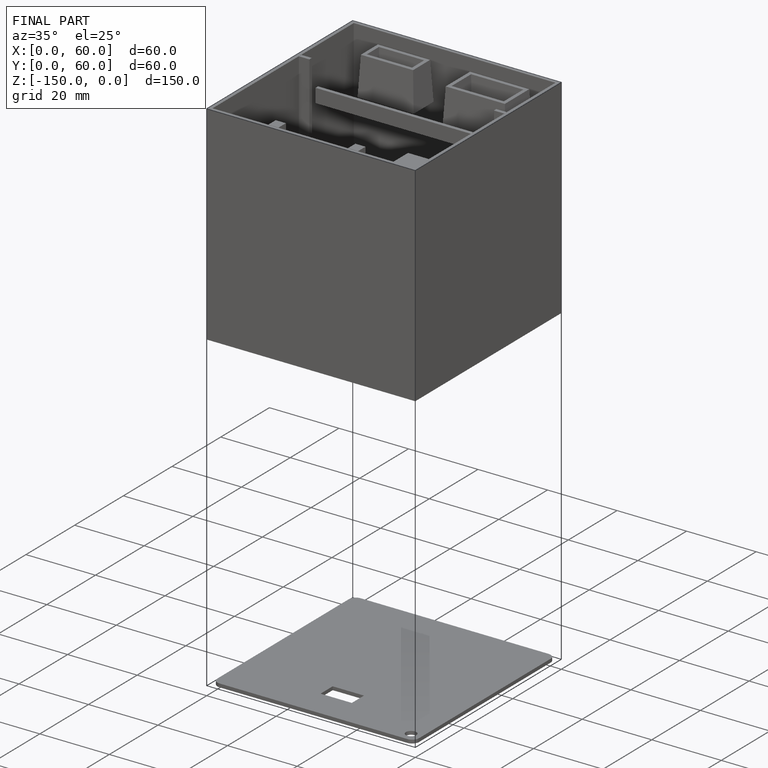
[diagram: finished part — iso view with bounding-box wireframe]
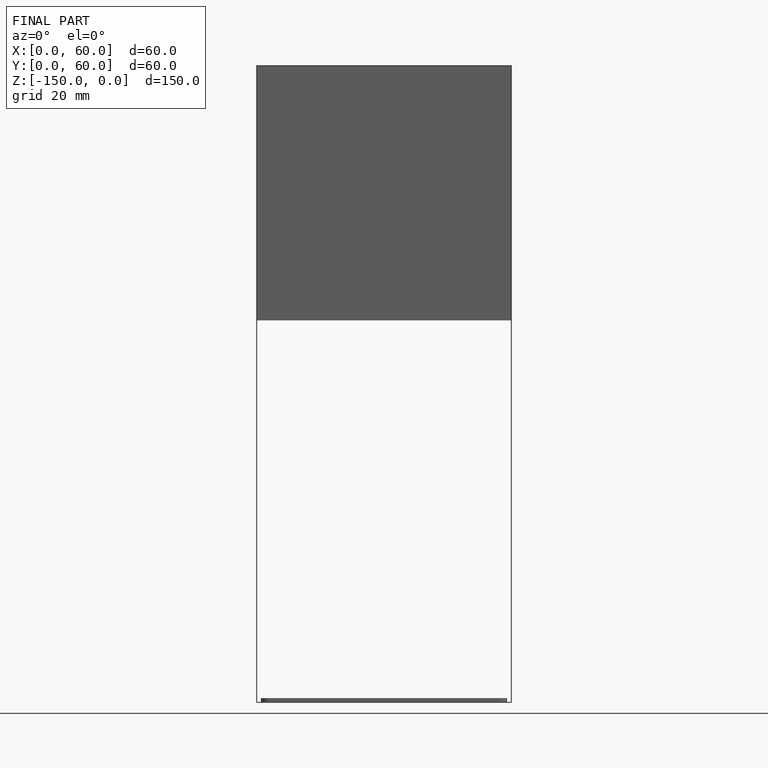
[diagram: finished part — front view with bounding-box wireframe]
